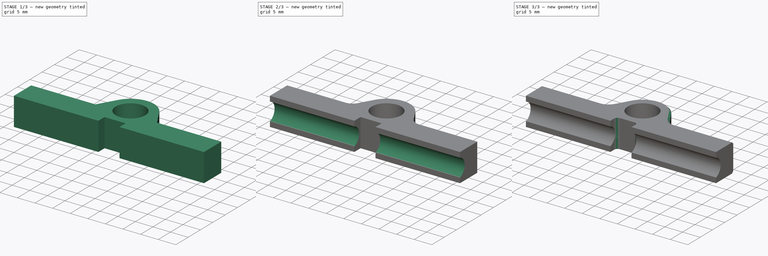
[diagram: build sequence overview — one tinted view per stage of 3, left to right]
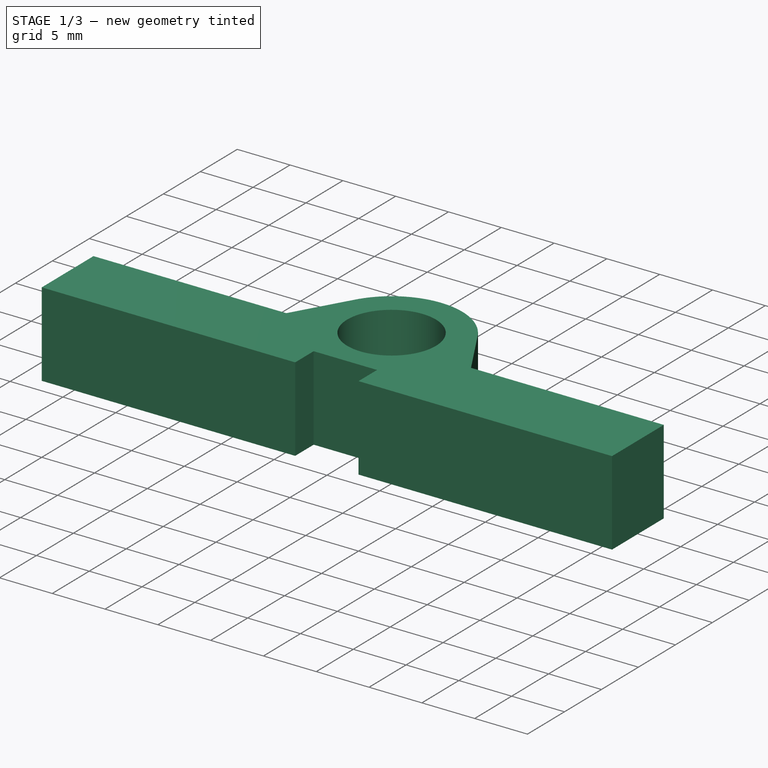
[diagram: stage 1 of 3 — iso view after this stage's code; geometry added in this stage tinted green]
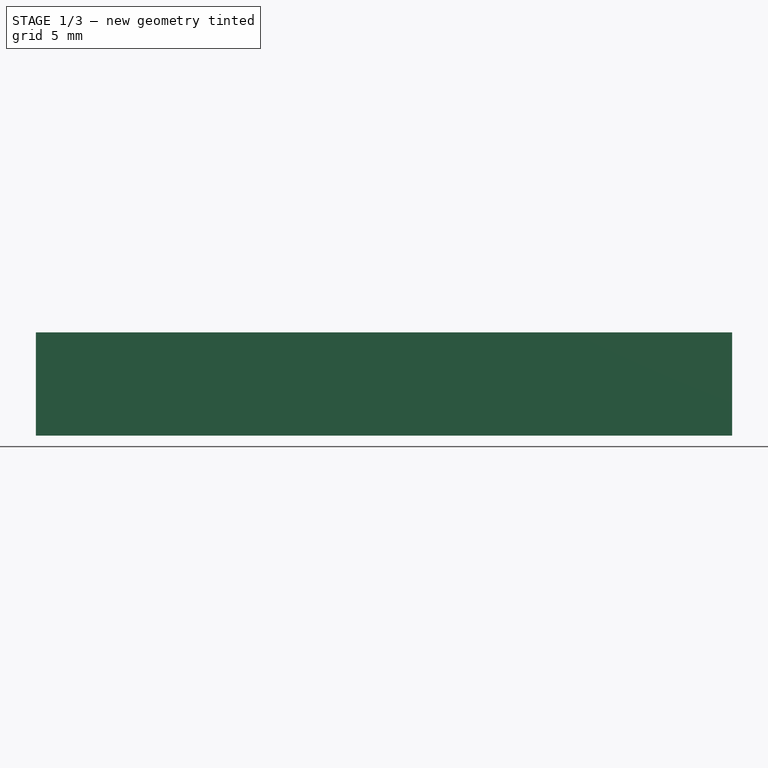
[diagram: stage 1 of 3 — front view after this stage's code; geometry added in this stage tinted green]
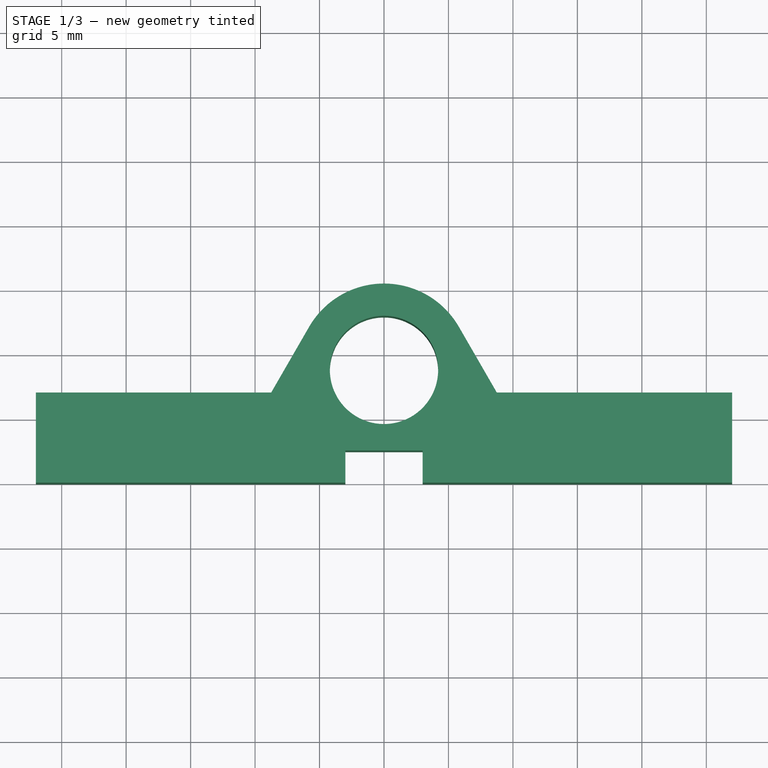
[diagram: stage 1 of 3 — top view after this stage's code; geometry added in this stage tinted green]
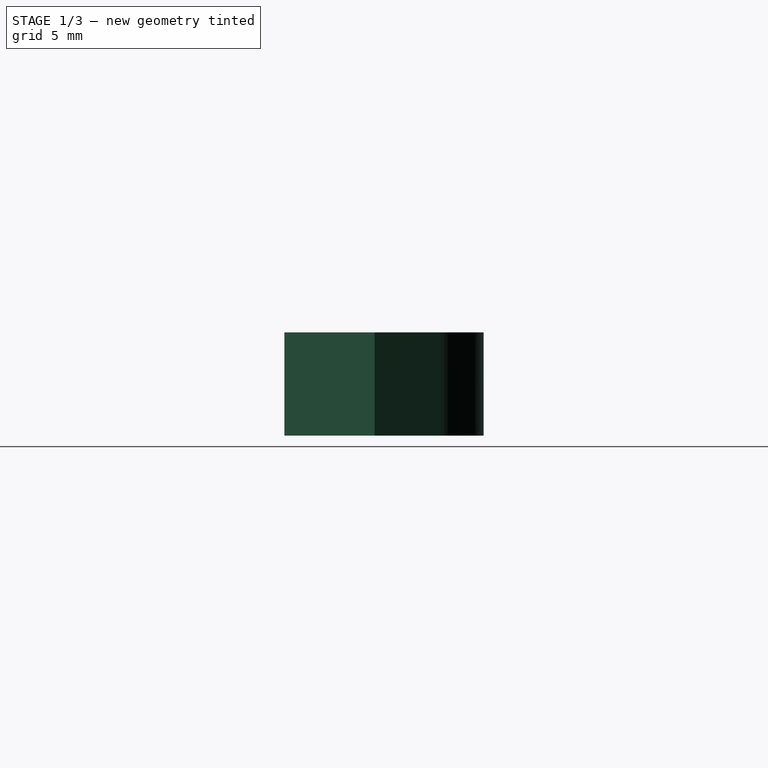
[diagram: stage 1 of 3 — right view after this stage's code; geometry added in this stage tinted green]
FCSTD DOCUMENT  (FreeCAD 0.20R24992 (Git))
Label: joint-4
License: All rights reserved
LicenseURL: http://en.wikipedia.org/wiki/All_rights_reserved
objects: Sketcher::SketchObject×3, PartDesign::Pocket×2, PartDesign::Fillet×2, PartDesign::Pad×1, PartDesign::Chamfer×1, PartDesign::Body×1
note: 16 computed .brp shape members not serialized (recipe doc carries the construction recipe); baked Part::Feature solids carry a one-line shape summary decoded from their .brp

FEATURE [Sketcher::SketchObject] Sketch
  FullyConstrained = true
  MapMode = 5
  Support = -> [XY_Plane]
  sketch-geometry (9):
    g0: Circle CenterX=0 CenterY=8.75 CenterZ=0 NormalX=0 NormalY=0 NormalZ=1 AngleXU=0 Radius=4.2
    g1: LineSegment StartX=-8.74686 StartY=7 StartZ=0 EndX=-27 EndY=7 EndZ=0
    g2: LineSegment StartX=8.74686 StartY=7 StartZ=0 EndX=27 EndY=7 EndZ=0
    g3: LineSegment StartX=-27 StartY=7 StartZ=0 EndX=-27 EndY=0 EndZ=0
    g4: LineSegment StartX=-27 StartY=0 StartZ=0 EndX=27 EndY=0 EndZ=0
    g5: LineSegment StartX=27 StartY=0 StartZ=0 EndX=27 EndY=7 EndZ=0
    g6: LineSegment StartX=-8.74686 StartY=7 StartZ=0 EndX=-5.80237 EndY=12.1 EndZ=0
    g7: ArcOfCircle CenterX=0 CenterY=8.75 CenterZ=0 NormalX=0 NormalY=0 NormalZ=1 AngleXU=0 Radius=6.7 StartAngle=0.523599 EndAngle=2.61799
    g8: LineSegment StartX=5.80237 StartY=12.1 StartZ=0 EndX=8.74686 EndY=7 EndZ=0
  constraints (26):
    c: PointOnObject(g0,g-2)
    c: Radius(g0) = 4.2
    c: DistanceY(g-1,g0) = 8.75
    c: Horizontal(g1)
    c: Horizontal(g2)
    c: Coincident(g3,g1)
    c: Vertical(g3)
    c: Coincident(g4,g3)
    c: PointOnObject(g4,g-1)
    c: Horizontal(g4)
    c: Coincident(g5,g4)
    c: Coincident(g5,g2)
    c: Vertical(g5)
    c: DistanceX(g3,g0) = 27
    c: DistanceX(g0,g4) = 27
    c: DistanceY(g3,g1) = 7
    c: Coincident(g6,g1)
    c: Coincident(g7,g0)
    c: Radius(g7) = 6.7
    c: Coincident(g7,g6)
    c: Tangent(g6,g7) = 1.5708
    c: Coincident(g8,g2)
    c: Angle(g6,g-2) = 0.523599
    c: Tangent(g8,g7) = 1.5708
    c: Angle(g-2,g8) = 0.523599
    c: PointOnObject(g2,g1)
FEATURE [PartDesign::Pad] Pad
  Direction = (0,0,1)
  Length = 8
  Length2 = 100
  Profile = -> Sketch
  Type = 0
FEATURE [Sketcher::SketchObject] Sketch002
  FullyConstrained = true
  MapMode = 5
  Placement = pos=(0,0,0) rot=(1,0,0;3.14159rad)
  sketch-geometry (4):
    g0: LineSegment StartX=-3 StartY=0 StartZ=0 EndX=3 EndY=0 EndZ=0
    g1: LineSegment StartX=3 StartY=0 StartZ=0 EndX=3 EndY=-2.5 EndZ=0
    g2: LineSegment StartX=3 StartY=-2.5 StartZ=0 EndX=-3 EndY=-2.5 EndZ=0
    g3: LineSegment StartX=-3 StartY=-2.5 StartZ=0 EndX=-3 EndY=0 EndZ=0
  constraints (12):
    c: Coincident(g0,g1)
    c: Coincident(g1,g2)
    c: Coincident(g2,g3)
    c: Coincident(g3,g0)
    c: Horizontal(g0)
    c: Horizontal(g2)
    c: Vertical(g1)
    c: Vertical(g3)
    c: PointOnObject(g-1,g0)
    c: DistanceX(g0,g-1) = 3
    c: DistanceX(g0,g0) = 6
    c: DistanceY(g1,g-1) = 2.5
FEATURE [PartDesign::Pocket] Pocket001
  BaseFeature = -> Pad
  Length = 5
  Length2 = 100
  Profile = -> Sketch002
  Type = 1
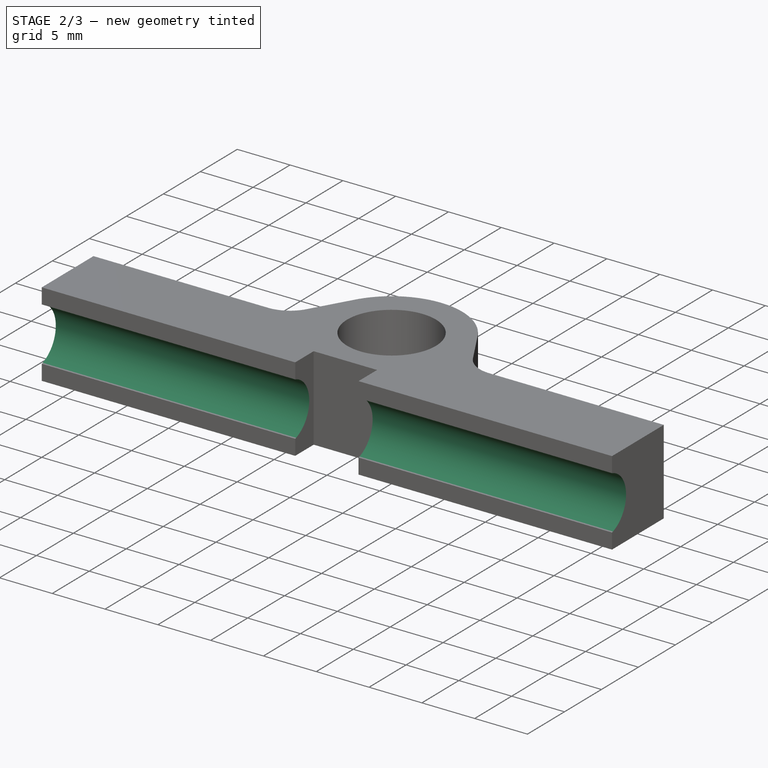
[diagram: stage 2 of 3 — iso view after this stage's code; geometry added in this stage tinted green]
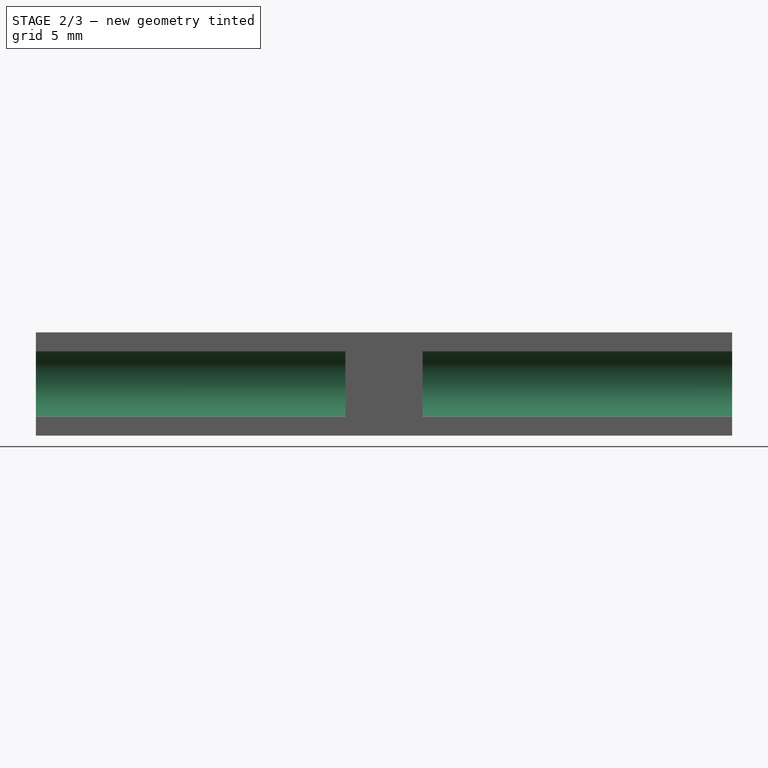
[diagram: stage 2 of 3 — front view after this stage's code; geometry added in this stage tinted green]
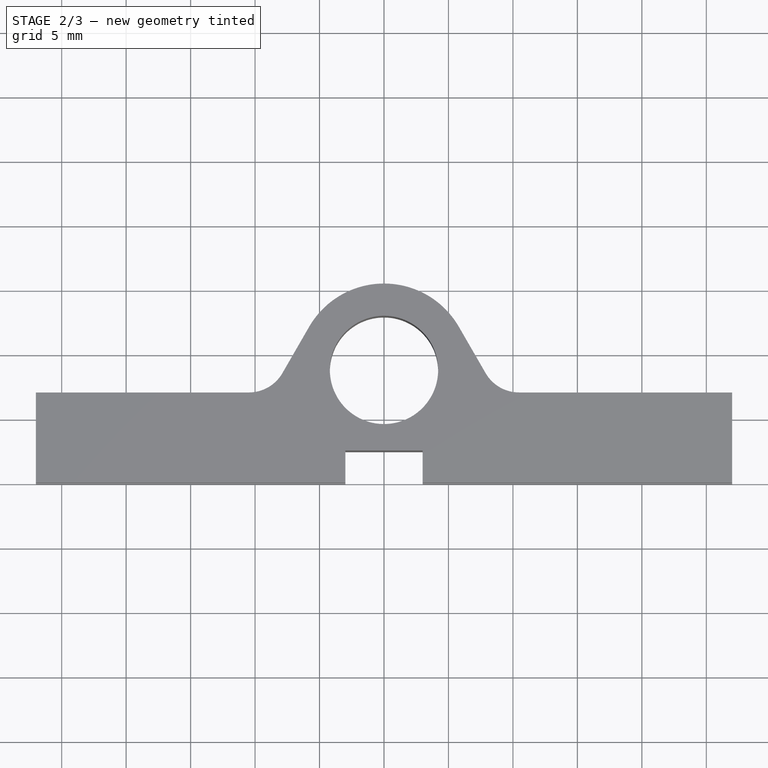
[diagram: stage 2 of 3 — top view after this stage's code; geometry added in this stage tinted green]
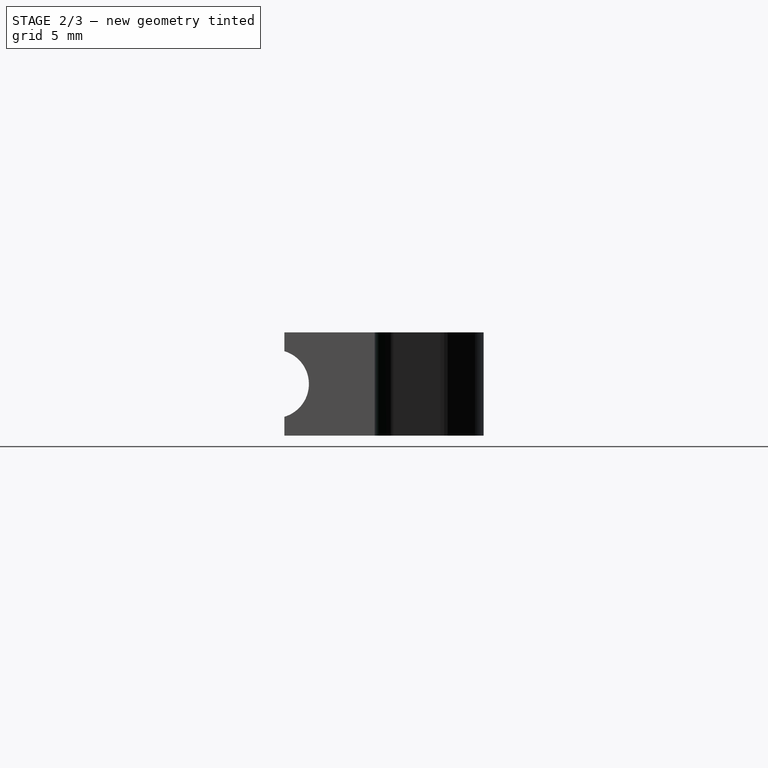
[diagram: stage 2 of 3 — right view after this stage's code; geometry added in this stage tinted green]
FEATURE [Sketcher::SketchObject] Sketch003
  FullyConstrained = true
  MapMode = 5
  Placement = pos=(-30,0,0) rot=(0.57735,-0.57735,-0.57735;2.0944rad)
  sketch-geometry (1):
    g0: Circle CenterX=0.75 CenterY=4 CenterZ=0 NormalX=0 NormalY=0 NormalZ=1 AngleXU=0 Radius=2.65
  constraints (3):
    c: DistanceX(g-1,g0) = 0.75
    c: DistanceY(g-1,g0) = 4
    c: Radius(g0) = 2.65
FEATURE [PartDesign::Pocket] Pocket
  BaseFeature = -> Pocket001
  Length = 5
  Length2 = 100
  Profile = -> Sketch003
  Type = 1
FEATURE [PartDesign::Fillet] Fillet
  Base = -> Pocket [Edge1,Edge39]
  BaseFeature = -> Pocket
  Radius = 3
  SupportTransform = false
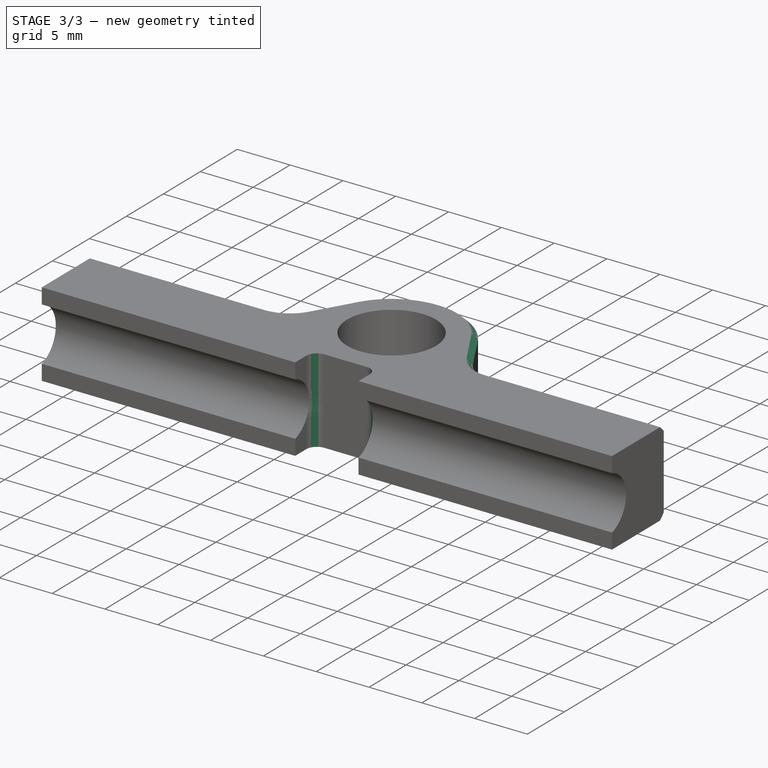
[diagram: stage 3 of 3 — iso view after this stage's code; geometry added in this stage tinted green]
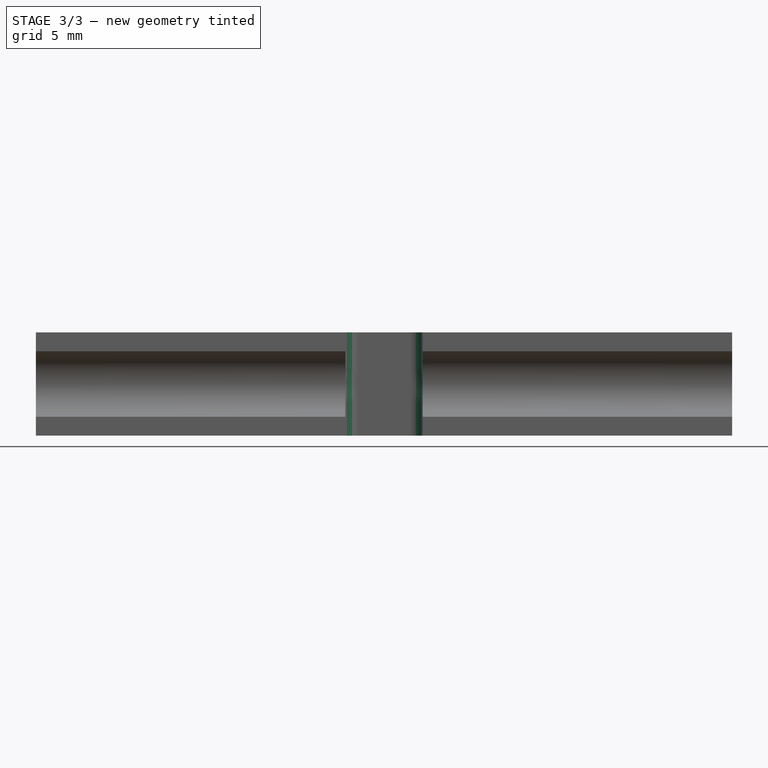
[diagram: stage 3 of 3 — front view after this stage's code; geometry added in this stage tinted green]
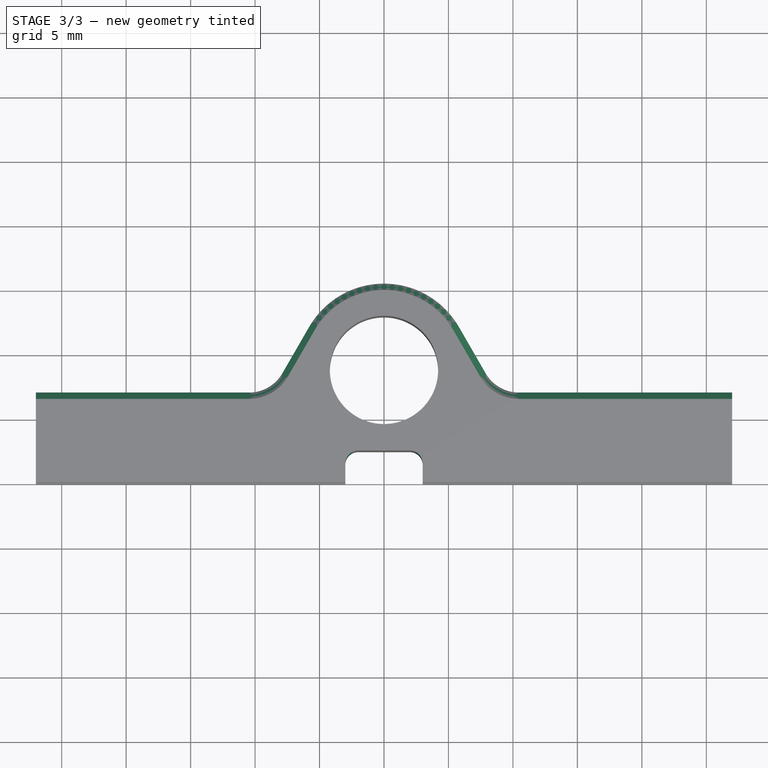
[diagram: stage 3 of 3 — top view after this stage's code; geometry added in this stage tinted green]
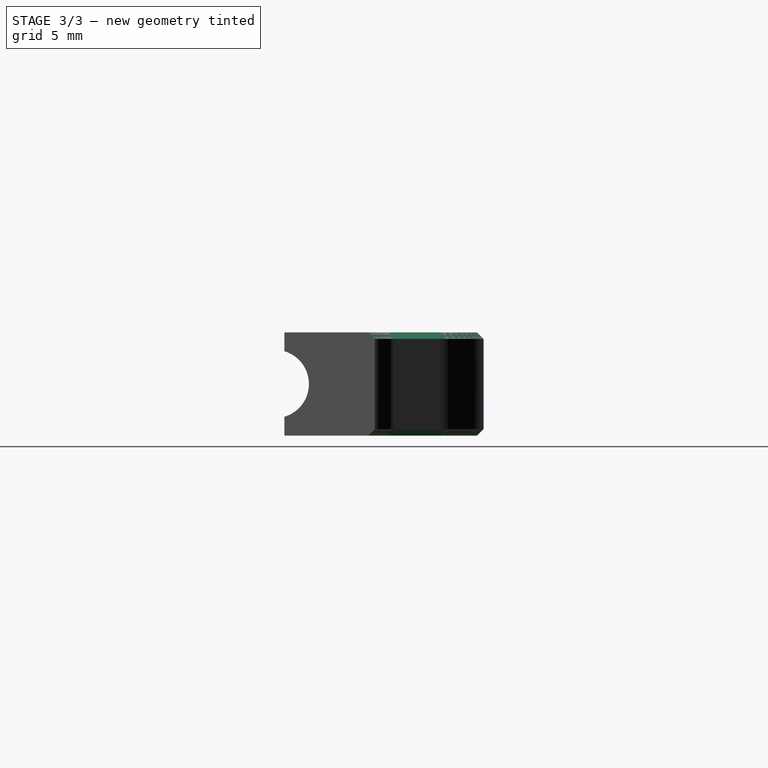
[diagram: stage 3 of 3 — right view after this stage's code; geometry added in this stage tinted green]
FEATURE [PartDesign::Chamfer] Chamfer
  Angle = 45
  Base = -> Fillet [Edge4,Edge1]
  BaseFeature = -> Fillet
  ChamferType = 0
  FlipDirection = false
  Size = 0.5
  Size2 = 1
  SupportTransform = false
FEATURE [PartDesign::Fillet] Fillet001
  Base = -> Chamfer [Edge60,Edge61]
  BaseFeature = -> Chamfer
  Radius = 1
  SupportTransform = false
FEATURE [PartDesign::Body] Body
  Group = -> [Sketch,Pad,Sketch002,Pocket001,Sketch003,Pocket,Fillet,Chamfer,Fillet001]
  Origin = -> Origin
  Tip = -> Fillet001
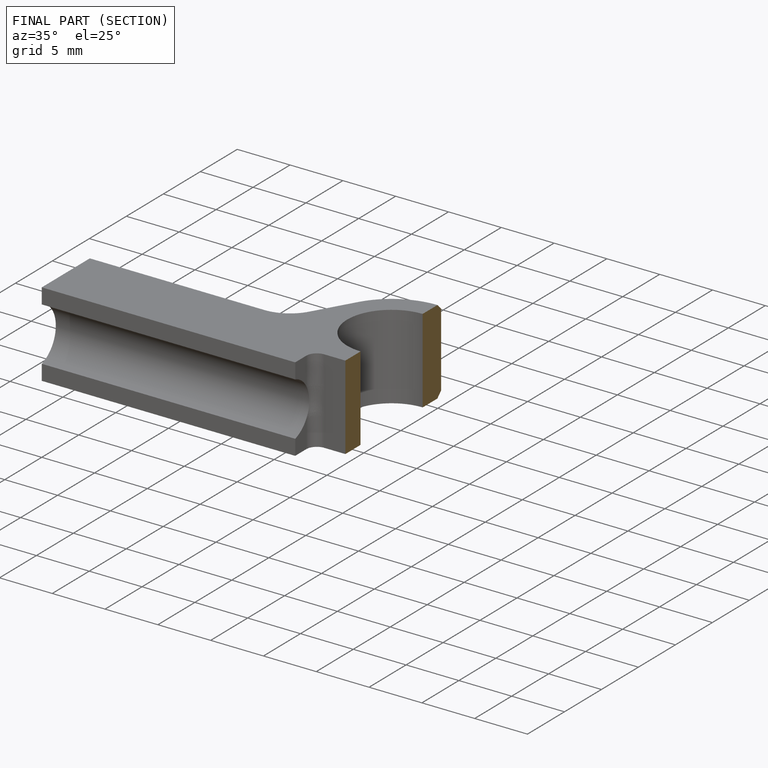
[diagram: finished part — half-section view (interior)]
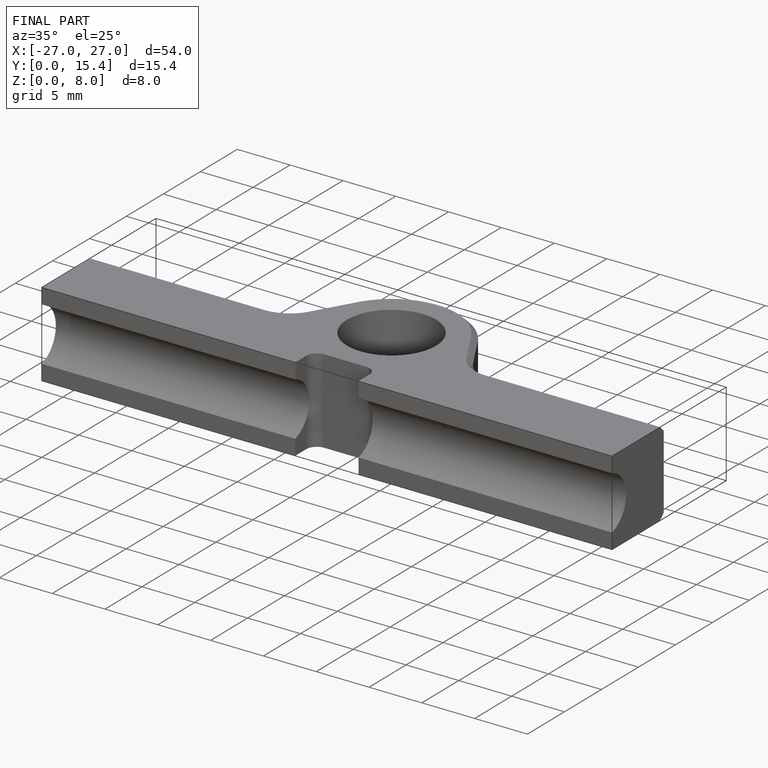
[diagram: finished part — iso view with bounding-box wireframe]
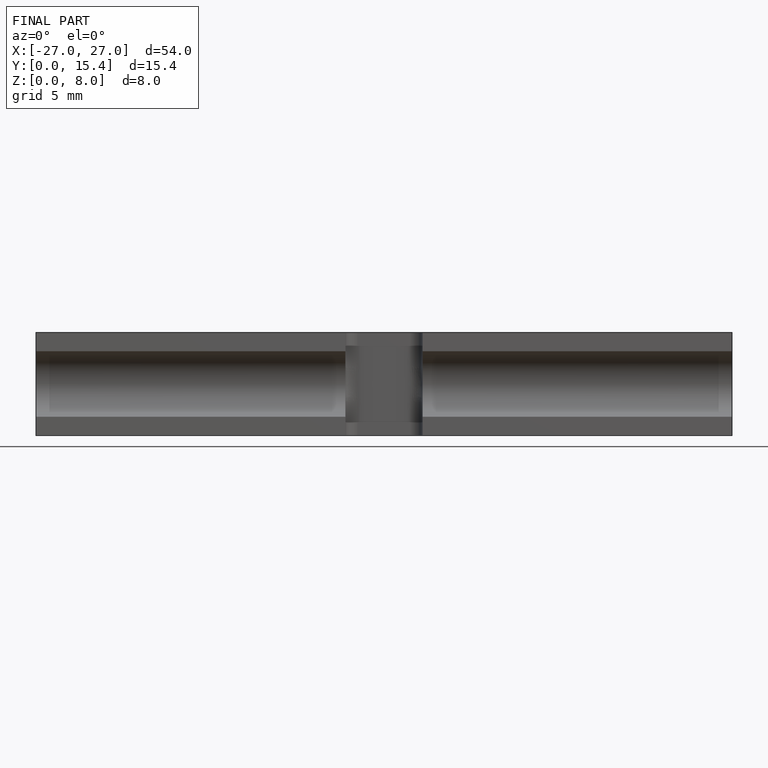
[diagram: finished part — front view with bounding-box wireframe]
